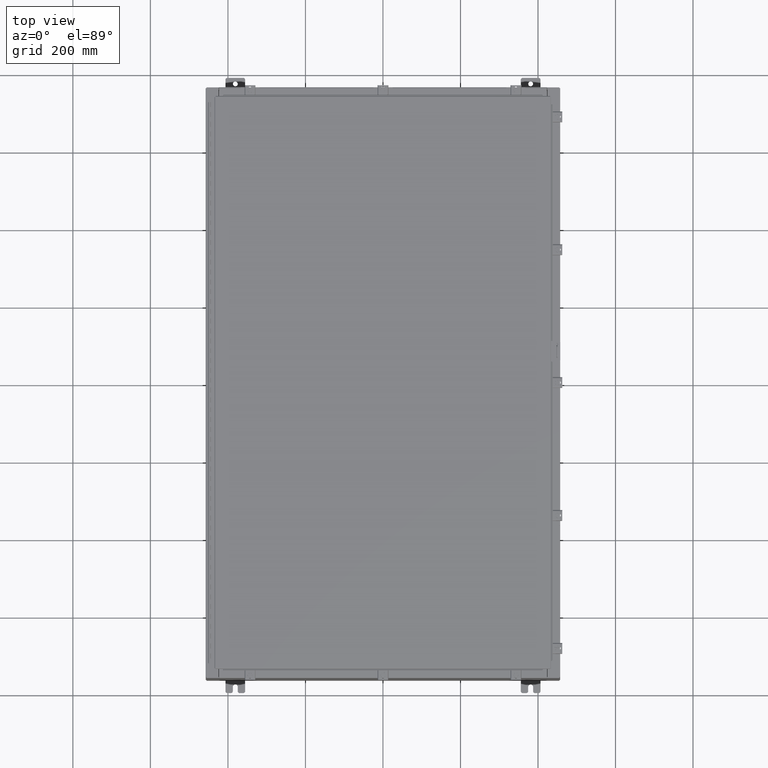
[diagram: clean part render]
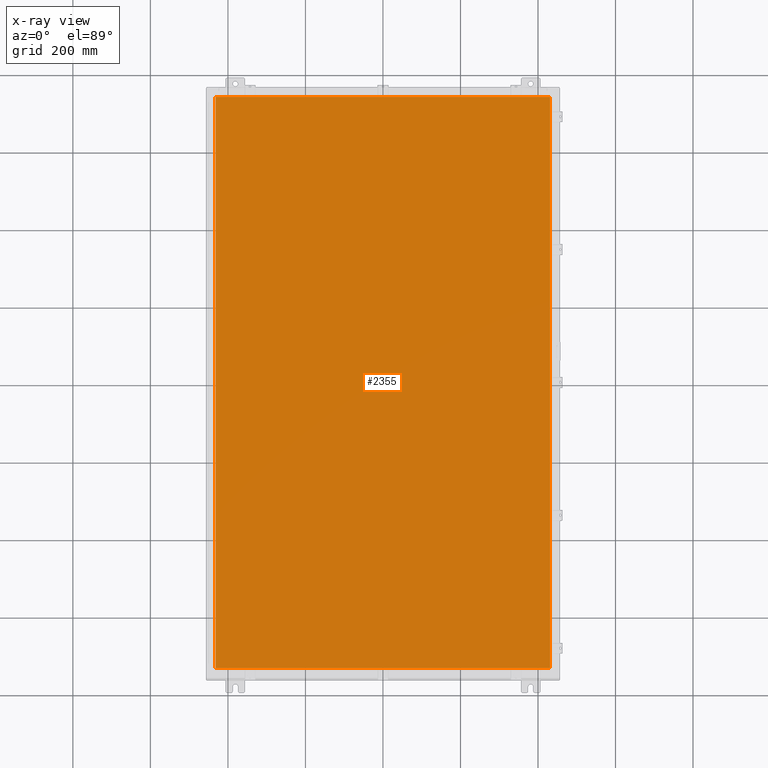
[diagram: x-ray — body ghosted, one internal face saturated and labeled with its STEP entity id]
A machine part, top view, then the same camera in x-ray: the body is ghosted and one INTERNAL B-rep face — a face not visible from any outside direction — is saturated and labeled: STEP entity #2355.
In plain terms, the highlighted planar face has unit normal (0, 0, -1).
Its self-contained STEP definition (entity closure, byte-faithful):
#260 = AXIS2_PLACEMENT_3D ( 'NONE', #48604, #14740, #48825 ) ;
#303 = LINE ( 'NONE', #60615, #50523 ) ;
#1145 = VECTOR ( 'NONE', #50427, 39.37007874015748100 ) ;
#2355 = ADVANCED_FACE ( 'NONE', ( #42659 ), #43929, .T. ) ;
#4776 = VERTEX_POINT ( 'NONE', #53955 ) ;
#5051 = VERTEX_POINT ( 'NONE', #26465 ) ;
#6437 = CARTESIAN_POINT ( 'NONE',  ( 16.99030000000000500, 29.00630000000000300, -0.07469999999999804600 ) ) ;
#8891 = EDGE_LOOP ( 'NONE', ( #48785, #48234, #20769, #21982 ) ) ;
#11443 = EDGE_CURVE ( 'NONE', #43653, #34217, #303, .T. ) ;
#12806 = EDGE_CURVE ( 'NONE', #34217, #5051, #19074, .T. ) ;
#14740 = DIRECTION ( 'NONE',  ( 0.0000000000000000000, 0.0000000000000000000, -1.000000000000000000 ) ) ;
#18465 = LINE ( 'NONE', #6437, #29931 ) ;
#18681 = DIRECTION ( 'NONE',  ( 1.000000000000000000, -0.0000000000000000000, -0.0000000000000000000 ) ) ;
#19074 = LINE ( 'NONE', #52775, #43524 ) ;
#20769 = ORIENTED_EDGE ( 'NONE', *, *, #11443, .F. ) ;
#21982 = ORIENTED_EDGE ( 'NONE', *, *, #30243, .F. ) ;
#26465 = CARTESIAN_POINT ( 'NONE',  ( 16.99030000000000500, -29.00630000000000000, -0.07470000000000000300 ) ) ;
#26631 = CARTESIAN_POINT ( 'NONE',  ( -16.99029999999999400, 29.00630000000000000, -0.07470000000000000300 ) ) ;
#29931 = VECTOR ( 'NONE', #30682, 39.37007874015748100 ) ;
#30243 = EDGE_CURVE ( 'NONE', #4776, #43653, #18465, .T. ) ;
#30682 = DIRECTION ( 'NONE',  ( -1.000000000000000000, -0.0000000000000000000, -0.0000000000000000000 ) ) ;
#34217 = VERTEX_POINT ( 'NONE', #57927 ) ;
#39956 = LINE ( 'NONE', #45532, #1145 ) ;
#42659 = FACE_OUTER_BOUND ( 'NONE', #8891, .T. ) ;
#43524 = VECTOR ( 'NONE', #18681, 39.37007874015748100 ) ;
#43653 = VERTEX_POINT ( 'NONE', #26631 ) ;
#43929 = PLANE ( 'NONE',  #260 ) ;
#45532 = CARTESIAN_POINT ( 'NONE',  ( 16.99030000000000500, -29.00630000000000000, -0.07470000000000019700 ) ) ;
#48234 = ORIENTED_EDGE ( 'NONE', *, *, #12806, .F. ) ;
#48604 = CARTESIAN_POINT ( 'NONE',  ( 0.0000000000000000000, 0.0000000000000000000, -0.07470000000000000300 ) ) ;
#48785 = ORIENTED_EDGE ( 'NONE', *, *, #48939, .F. ) ;
#48825 = DIRECTION ( 'NONE',  ( -1.000000000000000000, 0.0000000000000000000, -0.0000000000000000000 ) ) ;
#48939 = EDGE_CURVE ( 'NONE', #5051, #4776, #39956, .T. ) ;
#50427 = DIRECTION ( 'NONE',  ( 0.0000000000000000000, 1.000000000000000000, 0.0000000000000000000 ) ) ;
#50523 = VECTOR ( 'NONE', #55710, 39.37007874015748100 ) ;
#52775 = CARTESIAN_POINT ( 'NONE',  ( -16.99029999999999800, -29.00630000000000300, -0.07469999999999804600 ) ) ;
#53955 = CARTESIAN_POINT ( 'NONE',  ( 16.99030000000000500, 29.00630000000000000, -0.07470000000000000300 ) ) ;
#55710 = DIRECTION ( 'NONE',  ( 0.0000000000000000000, -1.000000000000000000, 0.0000000000000000000 ) ) ;
#57927 = CARTESIAN_POINT ( 'NONE',  ( -16.99029999999999800, -29.00630000000000000, -0.07470000000000000300 ) ) ;
#60615 = CARTESIAN_POINT ( 'NONE',  ( -16.99029999999999400, 29.00630000000000000, -0.07469999999999582500 ) ) ;